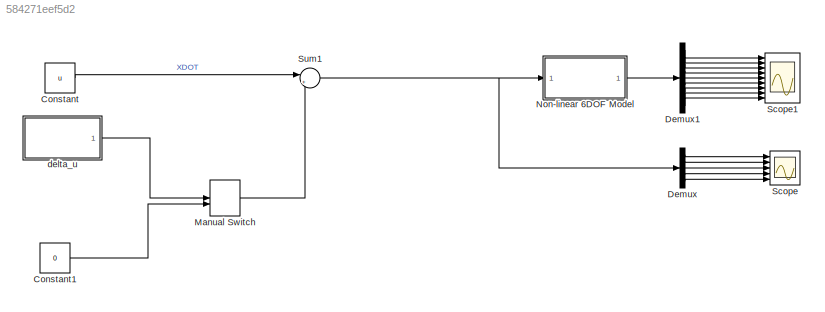
MODEL slx_584271eef5d2
KIND model
CONFIG AbsTol = auto
CONFIG EnableMultiTasking = off
CONFIG FixedStep = auto
CONFIG MaxStep = auto
CONFIG MinStep = auto
CONFIG RelTol = 1e-3
CONFIG SampleTimeConstraint = Unconstrained
CONFIG SolverName = VariableStepAuto
CONFIG StartTime = 0.0
CONFIG StopTime = 200
BLOCK [Constant] Constant
  Value = u
BLOCK [Constant] Constant1
  Value = 0
BLOCK [Demux] Demux
  Outputs = 5
  Ports = [1, 5]
BLOCK [Demux] Demux1
  Outputs = 9
  Ports = [1, 9]
BLOCK [ManualSwitch] Manual Switch
  CurrentSetting = 0
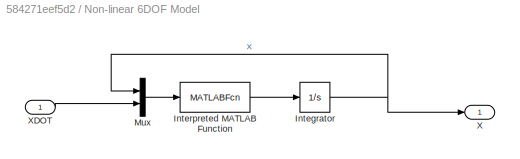
BLOCK [SubSystem] Non-linear 6DOF Model
  Ports = [1, 1]
  RequestExecContextInheritance = off
BLOCK [Integrator] Non-linear 6DOF Model/Integrator
  InitialCondition = x0
  Ports = [1, 1]
BLOCK [MATLABFcn] Non-linear 6DOF Model/Interpreted MATLAB Function
  MATLABFcn = RCAM_model(u(1:9),u(10:14))
  Ports = [1, 1]
BLOCK [Mux] Non-linear 6DOF Model/Mux
  DisplayOption = bar
  Inputs = 2
  Ports = [2, 1]
BLOCK [Outport] Non-linear 6DOF Model/X
BLOCK [Inport] Non-linear 6DOF Model/XDOT
BLOCK [Scope] Scope
  Floating = off
  NumInputPorts = 5
  Ports = [5]
  ScopeSpecificationString = Simulink.scopes.TimeScopeBlockCfg('CurrentConfiguration', extmgr.ConfigurationSet(extmgr.Configuration('Core','General UI',true),extmgr.Configuration('Core','Source UI',true),extmgr.Configuration('Sources','WiredSimulink',true),extmgr.Configuration('Visuals','Time Domain',true,'SerializedDisplays',{struct('MinYLimReal','-0.01091','MaxYLimReal','0.09817','YLabelReal','','MinYLimMag','0.00000','MaxY...<+4813ch>
BLOCK [Scope] Scope1
  Floating = off
  NumInputPorts = 9
  Ports = [9]
  ScopeSpecificationString = Simulink.scopes.TimeScopeBlockCfg('CurrentConfiguration', extmgr.ConfigurationSet(extmgr.Configuration('Core','General UI',true),extmgr.Configuration('Core','Source UI',true),extmgr.Configuration('Sources','WiredSimulink',true,'DataLoggingVariableName','ScopeData1'),extmgr.Configuration('Visuals','Time Domain',true,'SerializedDisplays',{struct('MinYLimReal','77.20297','MaxYLimReal','142.40133','YL...<+7176ch>
BLOCK [Sum] Sum1
  Inputs = |++
  Ports = [2, 1]
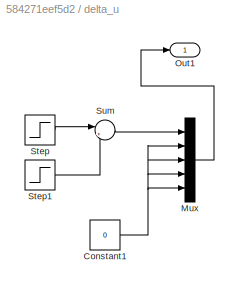
BLOCK [SubSystem] delta_u
  Ports = [0, 1]
  RequestExecContextInheritance = off
BLOCK [Constant] delta_u/Constant1
  Value = 0
BLOCK [Mux] delta_u/Mux
  DisplayOption = bar
  Inputs = 5
  Ports = [5, 1]
BLOCK [Outport] delta_u/Out1
BLOCK [Step] delta_u/Step
  After = 5*pi/180
  SampleTime = 0
  Time = 30
BLOCK [Step] delta_u/Step1
  After = -5*pi/180
  SampleTime = 0
  Time = 30+2
BLOCK [Sum] delta_u/Sum
  Inputs = |++
  Ports = [2, 1]
LINE Constant1:1 -> Manual Switch:2
LINE Constant:1 -> Sum1:1
LINE Demux1:1 -> Scope1:1
LINE Demux1:2 -> Scope1:2
LINE Demux1:3 -> Scope1:3
LINE Demux1:4 -> Scope1:4
LINE Demux1:5 -> Scope1:5
LINE Demux1:6 -> Scope1:6
LINE Demux1:7 -> Scope1:7
LINE Demux1:8 -> Scope1:8
LINE Demux1:9 -> Scope1:9
LINE Demux:1 -> Scope:1
LINE Demux:2 -> Scope:2
LINE Demux:3 -> Scope:3
LINE Demux:4 -> Scope:4
LINE Demux:5 -> Scope:5
LINE Manual Switch:1 -> Sum1:2
NET Non-linear 6DOF Model/Integrator:1 -> Non-linear 6DOF Model/Mux:1, Non-linear 6DOF Model/X:1
LINE Non-linear 6DOF Model/Interpreted MATLAB Function:1 -> Non-linear 6DOF Model/Integrator:1
LINE Non-linear 6DOF Model/Mux:1 -> Non-linear 6DOF Model/Interpreted MATLAB Function:1
LINE Non-linear 6DOF Model/XDOT:1 -> Non-linear 6DOF Model/Mux:2
LINE Non-linear 6DOF Model:1 -> Demux1:1
NET Sum1:1 -> Demux:1, Non-linear 6DOF Model:1
NET delta_u/Constant1:1 -> delta_u/Mux:2, delta_u/Mux:3, delta_u/Mux:4, delta_u/Mux:5
LINE delta_u/Mux:1 -> delta_u/Out1:1
LINE delta_u/Step1:1 -> delta_u/Sum:2
LINE delta_u/Step:1 -> delta_u/Sum:1
LINE delta_u/Sum:1 -> delta_u/Mux:1
LINE delta_u:1 -> Manual Switch:1
note: NET lines group one-source signal fan-out (src -> all destinations, sorted); 1:1 wires keep LINE
